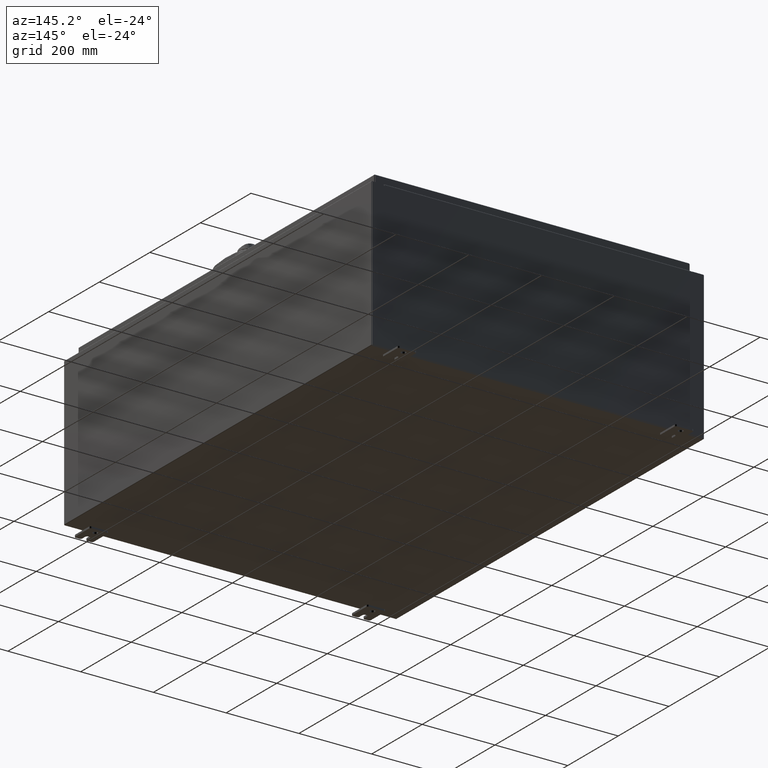
[diagram: clean part render]
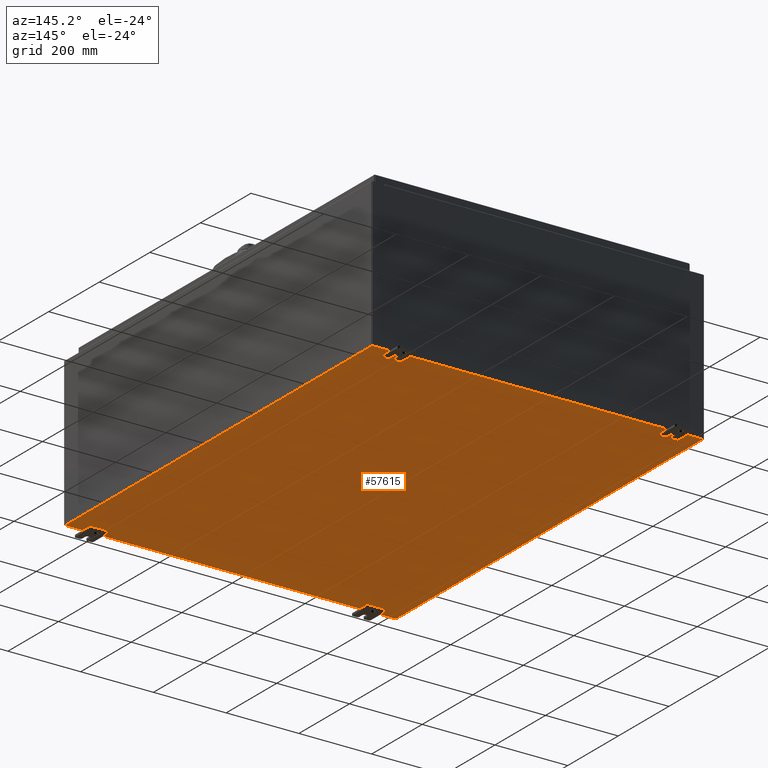
[diagram: same view with one face highlighted and labeled with its STEP entity id]
A machine part, auxiliary view. The second image highlights one B-rep face of the part: STEP entity #57615.
In plain terms, the highlighted planar face has unit normal (0, 0, -1).
Its self-contained STEP definition (entity closure, byte-faithful):
#784 = VERTEX_POINT ( 'NONE', #86460 ) ;
#9926 = ORIENTED_EDGE ( 'NONE', *, *, #100828, .T. ) ;
#10591 = ORIENTED_EDGE ( 'NONE', *, *, #81416, .F. ) ;
#11826 = DIRECTION ( 'NONE',  ( -1.000000000000000000, -0.0000000000000000000, -0.0000000000000000000 ) ) ;
#13016 = ORIENTED_EDGE ( 'NONE', *, *, #69787, .F. ) ;
#18139 = EDGE_CURVE ( 'NONE', #113445, #784, #25997, .T. ) ;
#19574 = VECTOR ( 'NONE', #118076, 39.37007874015748100 ) ;
#20435 = CARTESIAN_POINT ( 'NONE',  ( -18.00000000000000400, -23.92530000000000400, -0.07470000000000000300 ) ) ;
#25997 = LINE ( 'NONE', #77283, #19574 ) ;
#27792 = AXIS2_PLACEMENT_3D ( 'NONE', #36105, #107838, #46433 ) ;
#36105 = CARTESIAN_POINT ( 'NONE',  ( 0.0000000000000000000, 0.0000000000000000000, -0.07470000000000000300 ) ) ;
#39341 = VERTEX_POINT ( 'NONE', #118443 ) ;
#45388 = CARTESIAN_POINT ( 'NONE',  ( 17.91229999999999500, 23.92529999999998900, -0.07469999999999688000 ) ) ;
#46433 = DIRECTION ( 'NONE',  ( -1.000000000000000000, 0.0000000000000000000, -0.0000000000000000000 ) ) ;
#54260 = FACE_OUTER_BOUND ( 'NONE', #65368, .T. ) ;
#57615 = ADVANCED_FACE ( 'NONE', ( #54260 ), #87222, .T. ) ;
#65368 = EDGE_LOOP ( 'NONE', ( #13016, #88614, #10591, #9926 ) ) ;
#69787 = EDGE_CURVE ( 'NONE', #113445, #95681, #126081, .T. ) ;
#70940 = VECTOR ( 'NONE', #96436, 39.37007874015748100 ) ;
#71545 = VECTOR ( 'NONE', #102467, 39.37007874015748100 ) ;
#77283 = CARTESIAN_POINT ( 'NONE',  ( -17.91230000000000500, -23.92529999999998900, -0.07469999999999994700 ) ) ;
#78154 = CARTESIAN_POINT ( 'NONE',  ( 17.91229999999999500, -23.92530000000000000, -0.07470000000000000300 ) ) ;
#81416 = EDGE_CURVE ( 'NONE', #39341, #784, #103571, .T. ) ;
#86460 = CARTESIAN_POINT ( 'NONE',  ( -17.91230000000000500, 23.92529999999998900, -0.07470000000000000300 ) ) ;
#87222 = PLANE ( 'NONE',  #27792 ) ;
#88614 = ORIENTED_EDGE ( 'NONE', *, *, #18139, .T. ) ;
#95681 = VERTEX_POINT ( 'NONE', #78154 ) ;
#96436 = DIRECTION ( 'NONE',  ( -0.0000000000000000000, -1.000000000000000000, -8.208677865577646300E-017 ) ) ;
#97096 = VECTOR ( 'NONE', #11826, 39.37007874015748100 ) ;
#100828 = EDGE_CURVE ( 'NONE', #39341, #95681, #107845, .T. ) ;
#102467 = DIRECTION ( 'NONE',  ( 1.000000000000000000, 1.214154663850783700E-016, 0.0000000000000000000 ) ) ;
#103571 = LINE ( 'NONE', #124364, #97096 ) ;
#107838 = DIRECTION ( 'NONE',  ( 0.0000000000000000000, 0.0000000000000000000, -1.000000000000000000 ) ) ;
#107845 = LINE ( 'NONE', #45388, #70940 ) ;
#113445 = VERTEX_POINT ( 'NONE', #120659 ) ;
#118076 = DIRECTION ( 'NONE',  ( -0.0000000000000000000, 1.000000000000000000, -0.0000000000000000000 ) ) ;
#118443 = CARTESIAN_POINT ( 'NONE',  ( 17.91229999999999500, 23.92529999999998600, -0.07469999999999688000 ) ) ;
#120659 = CARTESIAN_POINT ( 'NONE',  ( -17.91230000000000500, -23.92529999999998600, -0.07469999999999994700 ) ) ;
#124364 = CARTESIAN_POINT ( 'NONE',  ( -18.00000000000000400, 23.92530000000000000, -0.07470000000000000300 ) ) ;
#126081 = LINE ( 'NONE', #20435, #71545 ) ;